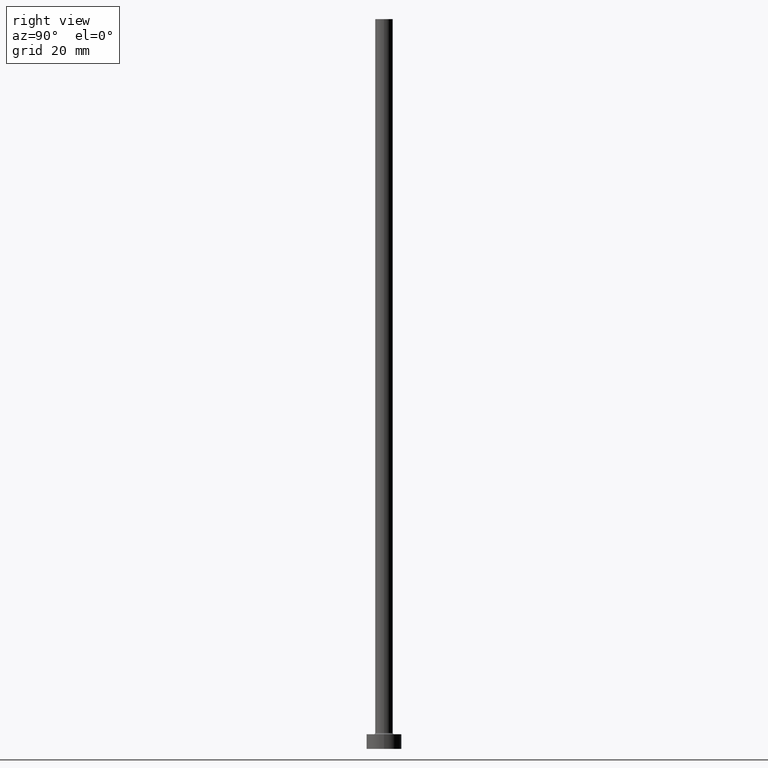
[diagram: clean part render]
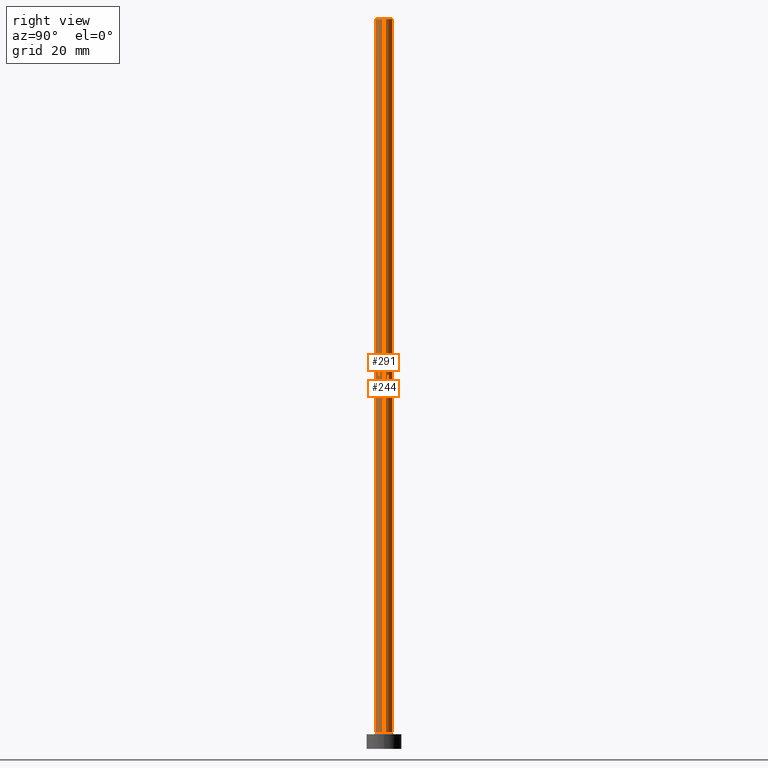
[diagram: same view with one multi-face feature highlighted, each face labeled with its STEP entity id]
A machine part, right view. The highlighted faces form ONE feature: a constant-radius fillet chain: 2 tangent blend faces with common blend radius 3 mm. The faces share edges in the B-rep.
Their STEP definitions:
[1] entity #244 (Cylinder):
#2 = DIRECTION ( 'NONE',  ( -1.000000000000000000, 0.000000000000000000, 0.000000000000000000 ) ) ;
#6 = AXIS2_PLACEMENT_3D ( 'NONE', #163, #56, #159 ) ;
#7 = DIRECTION ( 'NONE',  ( -0.000000000000000000, -0.000000000000000000, -1.000000000000000000 ) ) ;
#13 = VECTOR ( 'NONE', #105, 1000.000000000000000 ) ;
#16 = ORIENTED_EDGE ( 'NONE', *, *, #184, .F. ) ;
#28 = LINE ( 'NONE', #457, #13 ) ;
#32 = CARTESIAN_POINT ( 'NONE',  ( 0.000000000000000000, 0.000000000000000000, 250.0000000000000000 ) ) ;
#43 = VERTEX_POINT ( 'NONE', #315 ) ;
#51 = ORIENTED_EDGE ( 'NONE', *, *, #288, .T. ) ;
#56 = DIRECTION ( 'NONE',  ( 0.000000000000000000, 0.000000000000000000, 1.000000000000000000 ) ) ;
#62 = VERTEX_POINT ( 'NONE', #286 ) ;
#64 = FACE_OUTER_BOUND ( 'NONE', #392, .T. ) ;
#105 = DIRECTION ( 'NONE',  ( -0.000000000000000000, -0.000000000000000000, -1.000000000000000000 ) ) ;
#128 = AXIS2_PLACEMENT_3D ( 'NONE', #32, #139, #2 ) ;
#139 = DIRECTION ( 'NONE',  ( -0.000000000000000000, -0.000000000000000000, -1.000000000000000000 ) ) ;
#151 = LINE ( 'NONE', #372, #172 ) ;
#159 = DIRECTION ( 'NONE',  ( 1.000000000000000000, 0.000000000000000000, 0.000000000000000000 ) ) ;
#163 = CARTESIAN_POINT ( 'NONE',  ( 0.000000000000000000, 0.000000000000000000, 5.500000000000005329 ) ) ;
#172 = VECTOR ( 'NONE', #7, 1000.000000000000000 ) ;
#184 = EDGE_CURVE ( 'NONE', #205, #43, #28, .T. ) ;
#191 = VERTEX_POINT ( 'NONE', #260 ) ;
#198 = CARTESIAN_POINT ( 'NONE',  ( 0.000000000000000000, 0.000000000000000000, 250.0000000000000000 ) ) ;
#201 = AXIS2_PLACEMENT_3D ( 'NONE', #198, #408, #273 ) ;
#205 = VERTEX_POINT ( 'NONE', #320 ) ;
#224 = CYLINDRICAL_SURFACE ( 'NONE', #128, 3.000000000000000444 ) ;
#244 = ADVANCED_FACE ( 'NONE', ( #64 ), #224, .T. ) ;
#260 = CARTESIAN_POINT ( 'NONE',  ( 3.000000000000000444, 3.673940397442060361E-16, 5.500000000000005329 ) ) ;
#273 = DIRECTION ( 'NONE',  ( 1.000000000000000000, 0.000000000000000000, 0.000000000000000000 ) ) ;
#286 = CARTESIAN_POINT ( 'NONE',  ( 3.000000000000000444, 3.673940397442060361E-16, 250.0000000000000000 ) ) ;
#288 = EDGE_CURVE ( 'NONE', #62, #191, #151, .T. ) ;
#315 = CARTESIAN_POINT ( 'NONE',  ( -3.000000000000000444, 0.000000000000000000, 5.500000000000005329 ) ) ;
#320 = CARTESIAN_POINT ( 'NONE',  ( -3.000000000000000444, 0.000000000000000000, 250.0000000000000000 ) ) ;
#331 = EDGE_CURVE ( 'NONE', #62, #205, #403, .T. ) ;
#372 = CARTESIAN_POINT ( 'NONE',  ( 3.000000000000000444, 3.673940397442060361E-16, 250.0000000000000000 ) ) ;
#392 = EDGE_LOOP ( 'NONE', ( #406, #51, #402, #16 ) ) ;
#402 = ORIENTED_EDGE ( 'NONE', *, *, #411, .T. ) ;
#403 = CIRCLE ( 'NONE', #201, 3.000000000000000444 ) ;
#406 = ORIENTED_EDGE ( 'NONE', *, *, #331, .F. ) ;
#408 = DIRECTION ( 'NONE',  ( 0.000000000000000000, 0.000000000000000000, 1.000000000000000000 ) ) ;
#411 = EDGE_CURVE ( 'NONE', #191, #43, #450, .T. ) ;
#450 = CIRCLE ( 'NONE', #6, 3.000000000000000444 ) ;
#457 = CARTESIAN_POINT ( 'NONE',  ( -3.000000000000000444, 0.000000000000000000, 250.0000000000000000 ) ) ;
[2] entity #291 (Cylinder):
#7 = DIRECTION ( 'NONE',  ( -0.000000000000000000, -0.000000000000000000, -1.000000000000000000 ) ) ;
#13 = VECTOR ( 'NONE', #105, 1000.000000000000000 ) ;
#26 = CIRCLE ( 'NONE', #84, 3.000000000000000444 ) ;
#28 = LINE ( 'NONE', #457, #13 ) ;
#41 = DIRECTION ( 'NONE',  ( -0.000000000000000000, -0.000000000000000000, -1.000000000000000000 ) ) ;
#43 = VERTEX_POINT ( 'NONE', #315 ) ;
#45 = DIRECTION ( 'NONE',  ( 1.000000000000000000, 0.000000000000000000, 0.000000000000000000 ) ) ;
#54 = CARTESIAN_POINT ( 'NONE',  ( 0.000000000000000000, 0.000000000000000000, 250.0000000000000000 ) ) ;
#55 = DIRECTION ( 'NONE',  ( 1.000000000000000000, 0.000000000000000000, 0.000000000000000000 ) ) ;
#62 = VERTEX_POINT ( 'NONE', #286 ) ;
#66 = AXIS2_PLACEMENT_3D ( 'NONE', #441, #41, #412 ) ;
#78 = EDGE_CURVE ( 'NONE', #205, #62, #396, .T. ) ;
#79 = CARTESIAN_POINT ( 'NONE',  ( 0.000000000000000000, 0.000000000000000000, 5.500000000000005329 ) ) ;
#81 = FACE_OUTER_BOUND ( 'NONE', #257, .T. ) ;
#84 = AXIS2_PLACEMENT_3D ( 'NONE', #79, #373, #45 ) ;
#105 = DIRECTION ( 'NONE',  ( -0.000000000000000000, -0.000000000000000000, -1.000000000000000000 ) ) ;
#116 = ORIENTED_EDGE ( 'NONE', *, *, #78, .F. ) ;
#150 = ORIENTED_EDGE ( 'NONE', *, *, #342, .T. ) ;
#151 = LINE ( 'NONE', #372, #172 ) ;
#172 = VECTOR ( 'NONE', #7, 1000.000000000000000 ) ;
#184 = EDGE_CURVE ( 'NONE', #205, #43, #28, .T. ) ;
#191 = VERTEX_POINT ( 'NONE', #260 ) ;
#205 = VERTEX_POINT ( 'NONE', #320 ) ;
#210 = DIRECTION ( 'NONE',  ( 0.000000000000000000, 0.000000000000000000, 1.000000000000000000 ) ) ;
#255 = AXIS2_PLACEMENT_3D ( 'NONE', #54, #210, #55 ) ;
#257 = EDGE_LOOP ( 'NONE', ( #385, #116, #451, #150 ) ) ;
#260 = CARTESIAN_POINT ( 'NONE',  ( 3.000000000000000444, 3.673940397442060361E-16, 5.500000000000005329 ) ) ;
#286 = CARTESIAN_POINT ( 'NONE',  ( 3.000000000000000444, 3.673940397442060361E-16, 250.0000000000000000 ) ) ;
#288 = EDGE_CURVE ( 'NONE', #62, #191, #151, .T. ) ;
#291 = ADVANCED_FACE ( 'NONE', ( #81 ), #413, .T. ) ;
#315 = CARTESIAN_POINT ( 'NONE',  ( -3.000000000000000444, 0.000000000000000000, 5.500000000000005329 ) ) ;
#320 = CARTESIAN_POINT ( 'NONE',  ( -3.000000000000000444, 0.000000000000000000, 250.0000000000000000 ) ) ;
#342 = EDGE_CURVE ( 'NONE', #43, #191, #26, .T. ) ;
#372 = CARTESIAN_POINT ( 'NONE',  ( 3.000000000000000444, 3.673940397442060361E-16, 250.0000000000000000 ) ) ;
#373 = DIRECTION ( 'NONE',  ( 0.000000000000000000, 0.000000000000000000, 1.000000000000000000 ) ) ;
#385 = ORIENTED_EDGE ( 'NONE', *, *, #288, .F. ) ;
#396 = CIRCLE ( 'NONE', #255, 3.000000000000000444 ) ;
#412 = DIRECTION ( 'NONE',  ( -1.000000000000000000, 0.000000000000000000, 0.000000000000000000 ) ) ;
#413 = CYLINDRICAL_SURFACE ( 'NONE', #66, 3.000000000000000444 ) ;
#441 = CARTESIAN_POINT ( 'NONE',  ( 0.000000000000000000, 0.000000000000000000, 250.0000000000000000 ) ) ;
#451 = ORIENTED_EDGE ( 'NONE', *, *, #184, .T. ) ;
#457 = CARTESIAN_POINT ( 'NONE',  ( -3.000000000000000444, 0.000000000000000000, 250.0000000000000000 ) ) ;